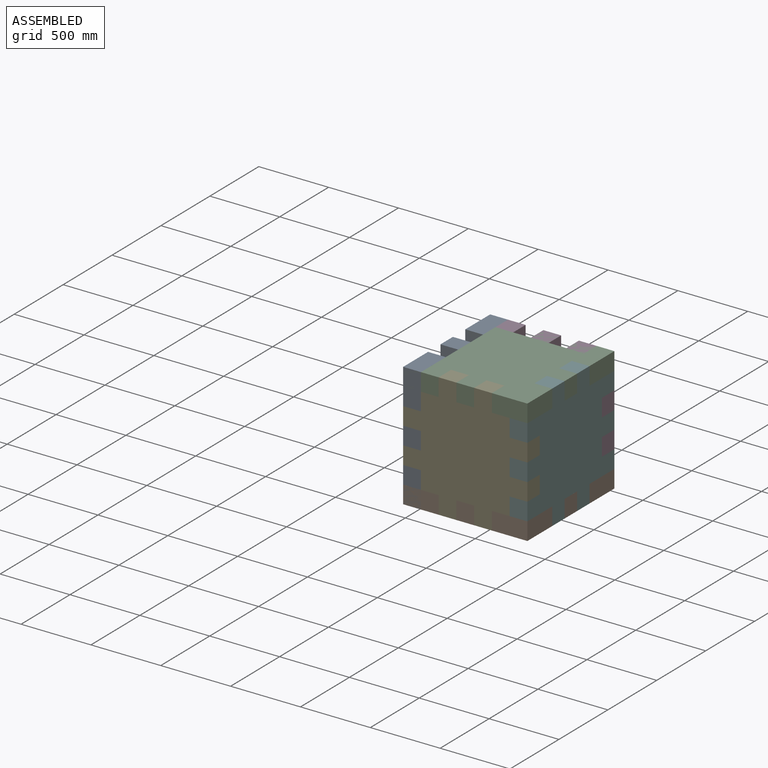
[diagram: assembled view]
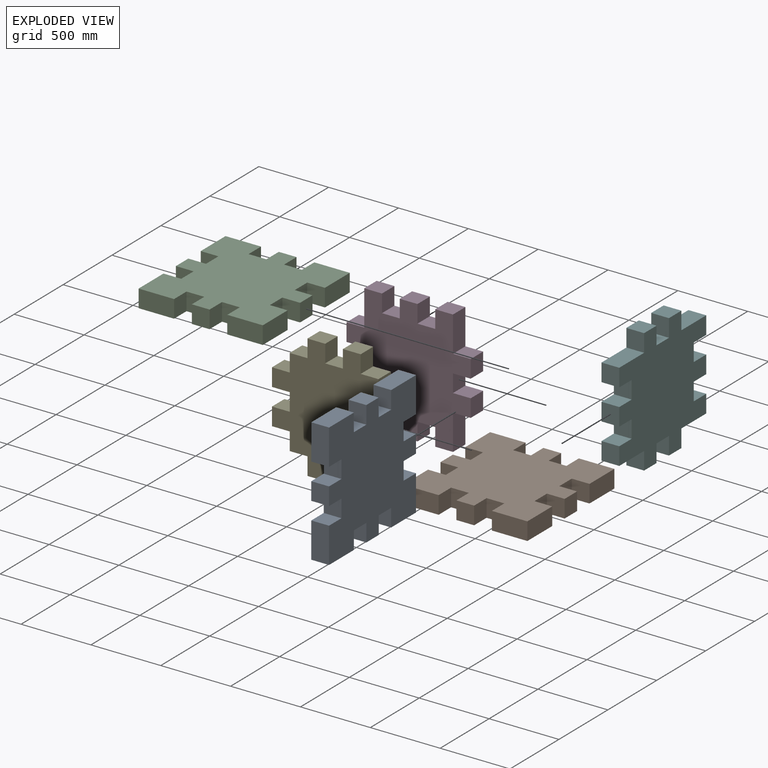
[diagram: exploded view]
GUIDED TOUR — MATED ASSEMBLY (Onshape document fb6f18fc9644f496db578211, AutoMate assembly fb6f18fc9644f496db578211_eea5504108c8b8bb8dff824f_bc9b73dee64ba3d77d8f322b_default)

This assembly has 6 components, labeled P0..P5 below (a component is one placed occurrence of a part; the same part can appear more than once), held together by 5 mates. A mate is a constraint between two components; its type names the relative motion it leaves free:
  FASTENED — locks the two components together rigidly (no relative motion).
Axis/direction vectors are unit vectors and 'through' points are millimeter coordinates, both in the assembly's world frame.

MATES
  1. FASTENED "Fastened 2": P3 <-> P1, direction (-1.000, 0.000, 0.000) through (-18.81, 369.42, -9.27) mm
  2. FASTENED "Fastened 3": P1 <-> P5, direction (0.000, -1.000, 0.000) through (171.69, -75.08, -9.27) mm
  3. FASTENED "Fastened 4": P1 <-> P4, direction (1.000, 0.000, 0.000) through (-272.81, -265.58, -9.27) mm
  4. FASTENED "Fastened 1": P0 <-> P1, direction (0.000, 1.000, 0.000) through (-463.31, 178.92, -9.27) mm
  5. FASTENED "Fastened 5": P2 <-> P4, direction (1.000, 0.000, 0.000) through (-272.81, -265.58, 879.73) mm

ASSEMBLY ORDER
  1. P1 — the base component [order heuristic]
  2. P0 [order heuristic]
  3. P3 [order heuristic]
  4. P4 [order heuristic]
  5. P5 [order heuristic]
  6. P2 [order heuristic]
Order-tag legend:
  [order heuristic] — this assembly is geometrically interlocked (no collision-free removal order exists), so components are listed in mate-graph order; insertion feasibility is not verified.

Of the 6 components, 6 carry the full construction recipe — the FeatureScript program that regenerates the part's solid from scratch; the rest are supplied as boundary geometry only.
Each toured component is shown spotlighted twice — in the assembled view, then in the exploded view, where a leader line traces a displaced component back to its assembled socket (saturated green if recipe-attached, orange if geometry-only; every other component desaturated gray) — followed by its recipe or geometry summary and the mates that hold it.
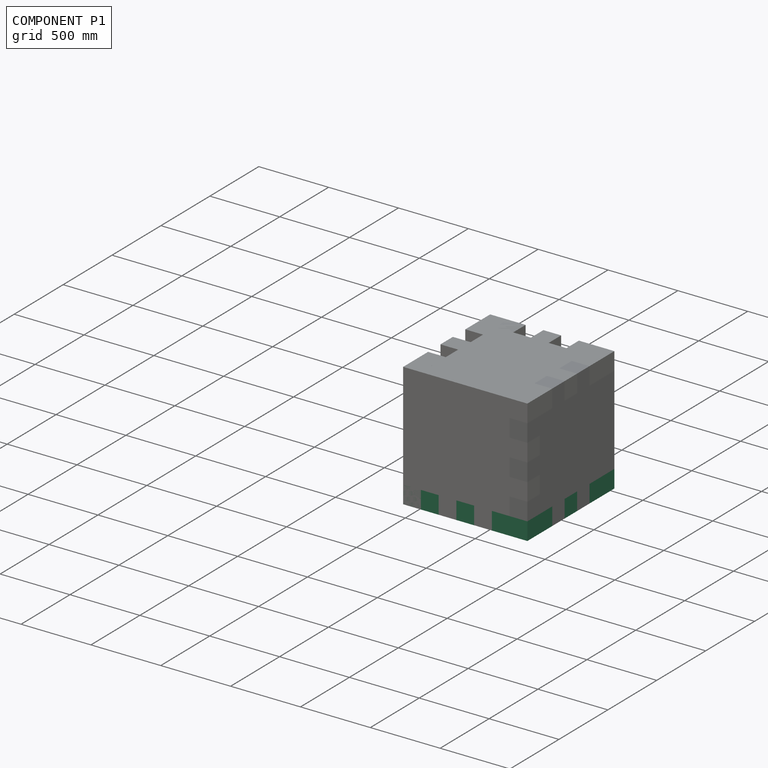
[diagram: component P1 — assembled]
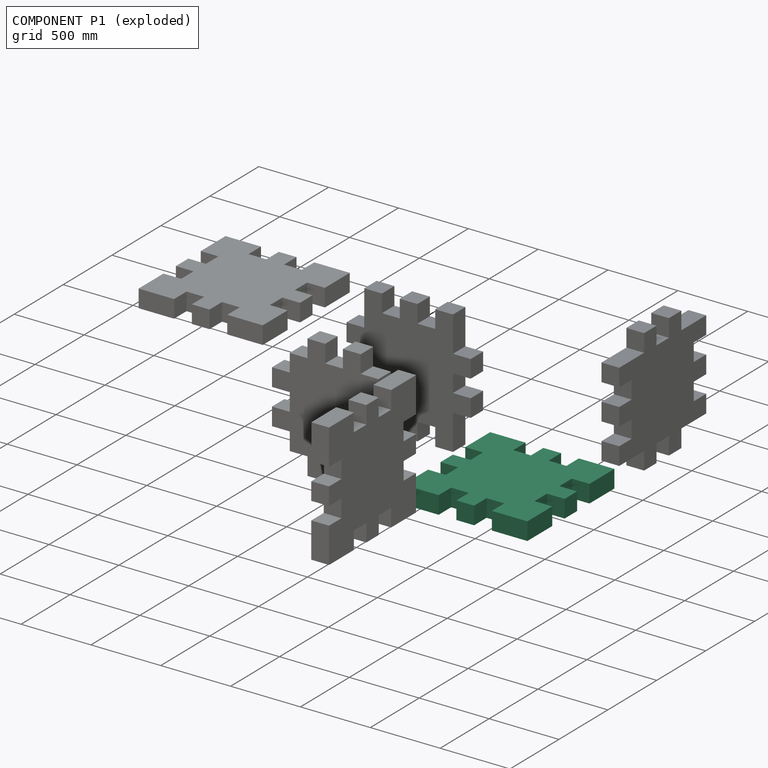
[diagram: component P1 — exploded]
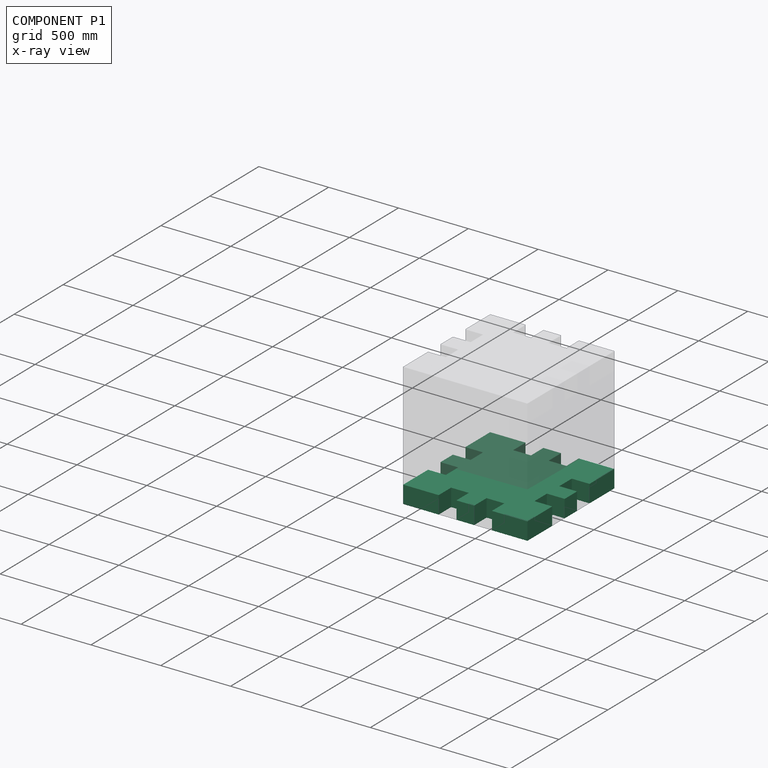
[diagram: component P1 — x-ray view]
COMPONENT P1 — same part as P0 (CADFS 00801034); its construction recipe is shown at P0.
Held by: FASTENED mate "Fastened 2" to P3; FASTENED mate "Fastened 3" to P5; FASTENED mate "Fastened 4" to P4; FASTENED mate "Fastened 1" to P0.
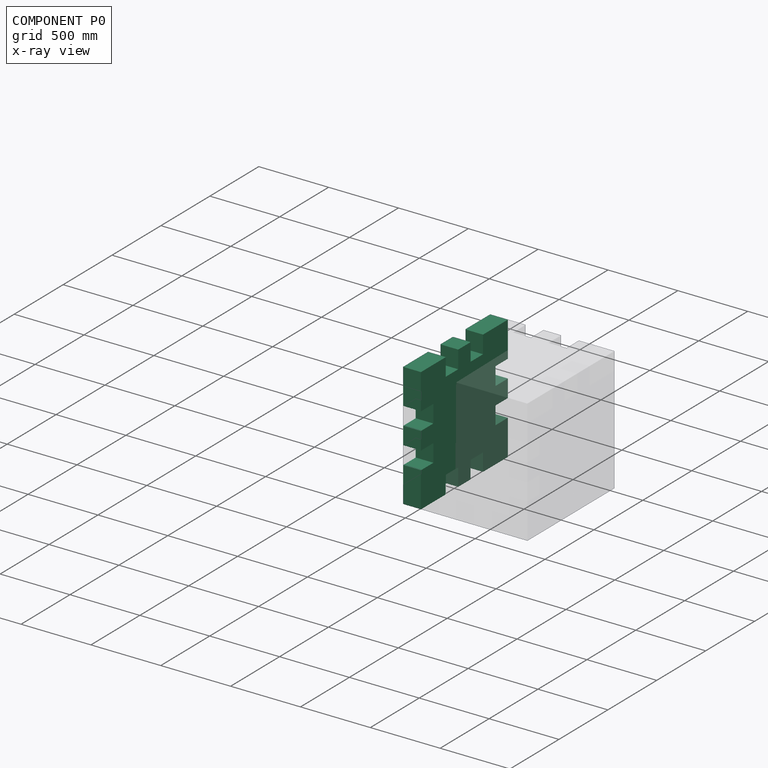
[diagram: component P0 — x-ray view]
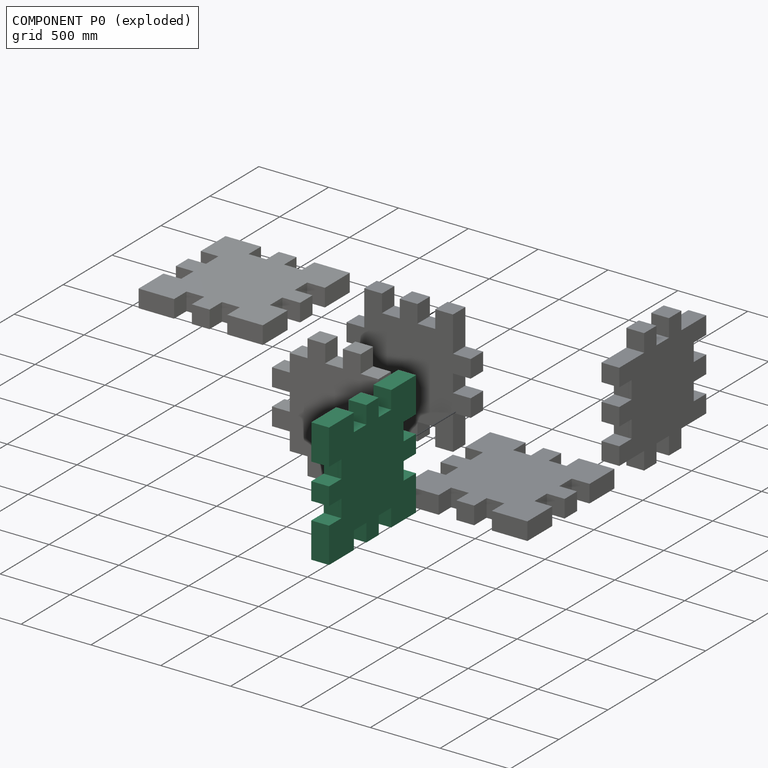
[diagram: component P0 — exploded]
COMPONENT P0 — recipe-attached (CADFS 00801034, mesh-verified: the recipe's output STEP matches this component's geometry to below the mesh-comparison resolution (tessellation chordal tolerance ~1.9 mm)).
Held by: FASTENED mate "Fastened 1" to P1.
Construction recipe (FeatureScript — the CAD program that rebuilds this solid; sketch coordinates are in the units given by the * unit suffixes, e.g. mm):

FeatureScript 1511;
import(path : "onshape/std/geometry.fs", version : "1511.0");
import(path : "onshape/std/common.fs", version : "1511.0");
const mm = millimeter;
const VERTEX = EntityType.VERTEX;
const EDGE = EntityType.EDGE;
const FACE = EntityType.FACE;
const BODY = EntityType.BODY;
function v(x, y){return vector(x, y);}
function OD(order){return orderDisambiguation(order);}
function OSD(set){return originalSetDisambiguation(set);}
function TD(topology){return topologyDisambiguation(topology);}
function TDD(query){return trueDependencyDisambiguation(query);}
function sQuery(a, b, c) {return sketchEntityQuery(a, b, c);}

annotation { "Feature Type Name" : "Feature", "Feature Type Description" : "" }
export const myFeature = defineFeature(function(context is Context, id is Id, definition is map)
    precondition{}
    {
        {
            var Q0;
            Q0=qCreatedBy(makeId("Top.planeOp"),FACE);
            var sketch = newSketch(context, id + "F0", { "sketchPlane" : qUnion([Q0])});
            skLineSegment(sketch, "E0.bottom", {"start": v(0, 0) * mm, "end": v(635, 0) * mm});
            skLineSegment(sketch, "E0.top", {"start": v(0, -635) * mm, "end": v(635, -635) * mm});
            skLineSegment(sketch, "E0.left", {"start": v(0, 0) * mm, "end": v(0, -635) * mm});
            skLineSegment(sketch, "E0.right", {"start": v(635, 0) * mm, "end": v(635, -635) * mm});
            skLineSegment(sketch, "E1.bottom", {"start": v(0, 0) * mm, "end": v(127, 0) * mm});
            skLineSegment(sketch, "E1.top", {"start": v(0, 127) * mm, "end": v(127, 127) * mm});
            skLineSegment(sketch, "E1.left", {"start": v(0, 0) * mm, "end": v(0, 127) * mm});
            skLineSegment(sketch, "E1.right", {"start": v(127, 0) * mm, "end": v(127, 127) * mm});
            skLineSegment(sketch, "E2.bottom", {"start": v(254, 0) * mm, "end": v(381, 0) * mm});
            skLineSegment(sketch, "E2.top", {"start": v(254, 127) * mm, "end": v(381, 127) * mm});
            skLineSegment(sketch, "E2.left", {"start": v(254, 0) * mm, "end": v(254, 127) * mm});
            skLineSegment(sketch, "E2.right", {"start": v(381, 0) * mm, "end": v(381, 127) * mm});
            skLineSegment(sketch, "E3.bottom", {"start": v(635, 0) * mm, "end": v(508, 0) * mm});
            skLineSegment(sketch, "E3.top", {"start": v(635, 127) * mm, "end": v(508, 127) * mm});
            skLineSegment(sketch, "E3.left", {"start": v(635, 0) * mm, "end": v(635, 127) * mm});
            skLineSegment(sketch, "E3.right", {"start": v(508, 0) * mm, "end": v(508, 127) * mm});
            skLineSegment(sketch, "E4.bottom", {"start": v(0, 0) * mm, "end": v(-127, 0) * mm});
            skLineSegment(sketch, "E4.top", {"start": v(0, -127) * mm, "end": v(-127, -127) * mm});
            skLineSegment(sketch, "E4.left", {"start": v(0, 0) * mm, "end": v(0, -127) * mm});
            skLineSegment(sketch, "E4.right", {"start": v(-127, 0) * mm, "end": v(-127, -127) * mm});
            skLineSegment(sketch, "E5.bottom", {"start": v(0, -254) * mm, "end": v(-127, -254) * mm});
            skLineSegment(sketch, "E5.top", {"start": v(0, -381) * mm, "end": v(-127, -381) * mm});
            skLineSegment(sketch, "E5.left", {"start": v(0, -254) * mm, "end": v(0, -381) * mm});
            skLineSegment(sketch, "E5.right", {"start": v(-127, -254) * mm, "end": v(-127, -381) * mm});
            skLineSegment(sketch, "E6.bottom", {"start": v(0, -635) * mm, "end": v(-127, -635) * mm});
            skLineSegment(sketch, "E6.top", {"start": v(0, -508) * mm, "end": v(-127, -508) * mm});
            skLineSegment(sketch, "E6.left", {"start": v(0, -635) * mm, "end": v(0, -508) * mm});
            skLineSegment(sketch, "E6.right", {"start": v(-127, -635) * mm, "end": v(-127, -508) * mm});
            skLineSegment(sketch, "E7.bottom", {"start": v(0, -635) * mm, "end": v(127, -635) * mm});
            skLineSegment(sketch, "E7.top", {"start": v(0, -762) * mm, "end": v(127, -762) * mm});
            skLineSegment(sketch, "E7.left", {"start": v(0, -635) * mm, "end": v(0, -762) * mm});
            skLineSegment(sketch, "E7.right", {"start": v(127, -635) * mm, "end": v(127, -762) * mm});
            skLineSegment(sketch, "E8.bottom", {"start": v(254, -635) * mm, "end": v(381, -635) * mm});
            skLineSegment(sketch, "E8.top", {"start": v(254, -762) * mm, "end": v(381, -762) * mm});
            skLineSegment(sketch, "E8.left", {"start": v(254, -635) * mm, "end": v(254, -762) * mm});
            skLineSegment(sketch, "E8.right", {"start": v(381, -635) * mm, "end": v(381, -762) * mm});
            skLineSegment(sketch, "E9.bottom", {"start": v(635, -635) * mm, "end": v(508, -635) * mm});
            skLineSegment(sketch, "E9.top", {"start": v(635, -762) * mm, "end": v(508, -762) * mm});
            skLineSegment(sketch, "E9.left", {"start": v(635, -635) * mm, "end": v(635, -762) * mm});
            skLineSegment(sketch, "E9.right", {"start": v(508, -635) * mm, "end": v(508, -762) * mm});
            skLineSegment(sketch, "E10.bottom", {"start": v(635, 0) * mm, "end": v(762, 0) * mm});
            skLineSegment(sketch, "E10.top", {"start": v(635, -127) * mm, "end": v(762, -127) * mm});
            skLineSegment(sketch, "E10.left", {"start": v(635, 0) * mm, "end": v(635, -127) * mm});
            skLineSegment(sketch, "E10.right", {"start": v(762, 0) * mm, "end": v(762, -127) * mm});
            skLineSegment(sketch, "E11.bottom", {"start": v(635, -508) * mm, "end": v(762, -508) * mm});
            skLineSegment(sketch, "E11.top", {"start": v(635, -635) * mm, "end": v(762, -635) * mm});
            skLineSegment(sketch, "E11.left", {"start": v(635, -508) * mm, "end": v(635, -635) * mm});
            skLineSegment(sketch, "E11.right", {"start": v(762, -508) * mm, "end": v(762, -635) * mm});
            skLineSegment(sketch, "E12.bottom", {"start": v(635, -254) * mm, "end": v(762, -254) * mm});
            skLineSegment(sketch, "E12.top", {"start": v(635, -381) * mm, "end": v(762, -381) * mm});
            skLineSegment(sketch, "E12.left", {"start": v(635, -254) * mm, "end": v(635, -381) * mm});
            skLineSegment(sketch, "E12.right", {"start": v(762, -254) * mm, "end": v(762, -381) * mm});
            skLineSegment(sketch, "E13.bottom", {"start": v(-127, 0) * mm, "end": v(0, 0) * mm});
            skLineSegment(sketch, "E13.top", {"start": v(-127, 127) * mm, "end": v(0, 127) * mm});
            skLineSegment(sketch, "E13.left", {"start": v(-127, 0) * mm, "end": v(-127, 127) * mm});
            skLineSegment(sketch, "E14.bottom", {"start": v(635, 127) * mm, "end": v(762, 127) * mm});
            skLineSegment(sketch, "E14.left", {"start": v(635, 127) * mm, "end": v(635, 0) * mm});
            skLineSegment(sketch, "E14.right", {"start": v(762, 127) * mm, "end": v(762, 0) * mm});
            skLineSegment(sketch, "E15.bottom", {"start": v(-127, -635) * mm, "end": v(0, -635) * mm});
            skLineSegment(sketch, "E15.top", {"start": v(-127, -762) * mm, "end": v(0, -762) * mm});
            skLineSegment(sketch, "E15.left", {"start": v(-127, -635) * mm, "end": v(-127, -762) * mm});
            skLineSegment(sketch, "E16.bottom", {"start": v(762, -635) * mm, "end": v(635, -635) * mm});
            skLineSegment(sketch, "E16.top", {"start": v(762, -762) * mm, "end": v(635, -762) * mm});
            skLineSegment(sketch, "E16.left", {"start": v(762, -635) * mm, "end": v(762, -762) * mm});
            skSolve(sketch);
        }
        {
            var Q0;
            Q0 = qSketchRegion(id + "F0", true);
            extrude(context, id + "F1", {"entities" : qUnion([Q0]), "depth" : 127 * mm, "offsetDistance" : 25.4 * mm});
        }
    });
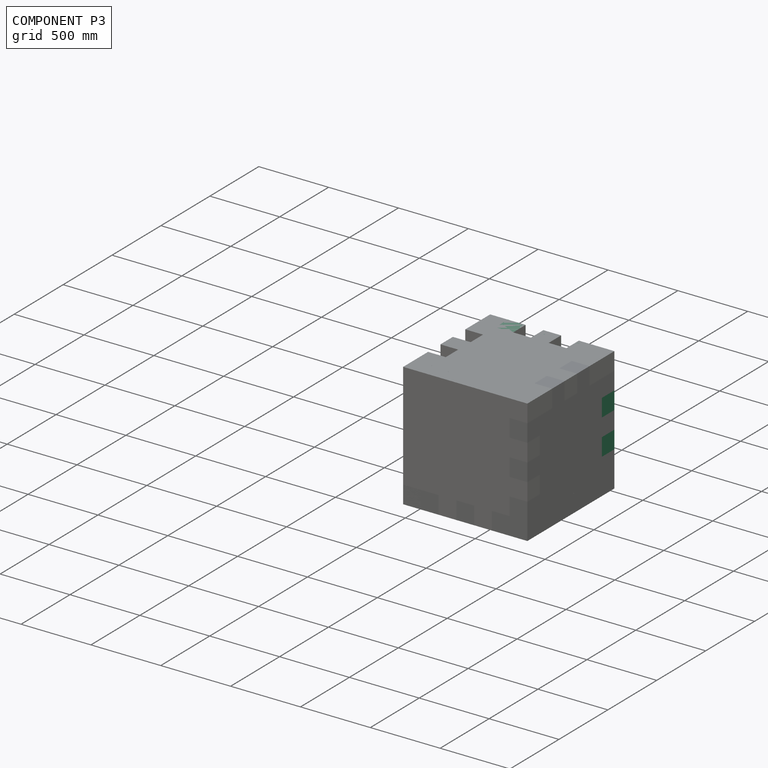
[diagram: component P3 — assembled]
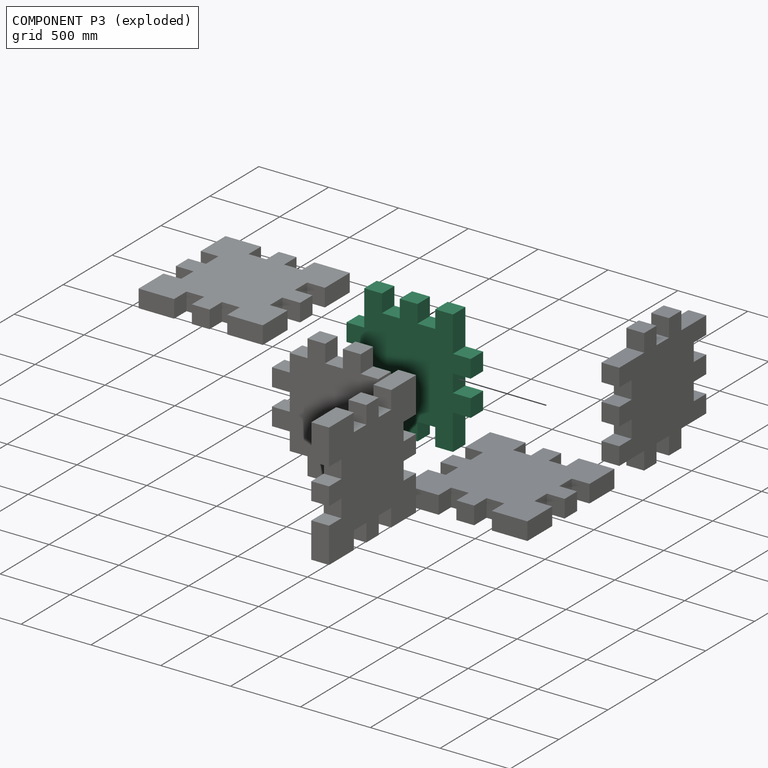
[diagram: component P3 — exploded]
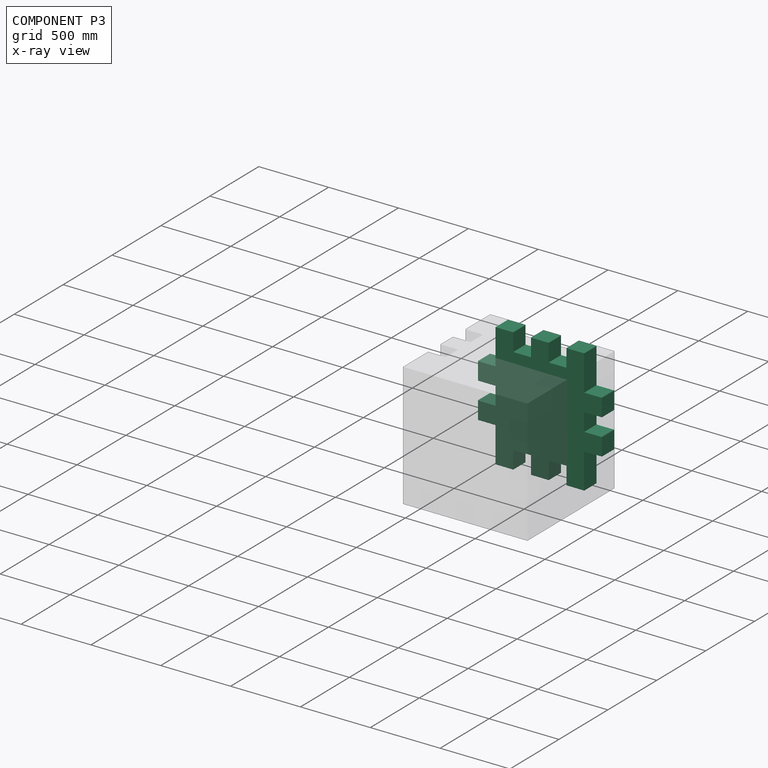
[diagram: component P3 — x-ray view]
COMPONENT P3 — recipe-attached (CADFS 00801035, mesh-verified: the recipe's output STEP matches this component's geometry to below the mesh-comparison resolution (tessellation chordal tolerance ~1.9 mm)).
Held by: FASTENED mate "Fastened 2" to P1.
Construction recipe (FeatureScript — the CAD program that rebuilds this solid; sketch coordinates are in the units given by the * unit suffixes, e.g. mm):

FeatureScript 1511;
import(path : "onshape/std/geometry.fs", version : "1511.0");
import(path : "onshape/std/common.fs", version : "1511.0");
const mm = millimeter;
const VERTEX = EntityType.VERTEX;
const EDGE = EntityType.EDGE;
const FACE = EntityType.FACE;
const BODY = EntityType.BODY;
function v(x, y){return vector(x, y);}
function OD(order){return orderDisambiguation(order);}
function OSD(set){return originalSetDisambiguation(set);}
function TD(topology){return topologyDisambiguation(topology);}
function TDD(query){return trueDependencyDisambiguation(query);}
function sQuery(a, b, c) {return sketchEntityQuery(a, b, c);}

annotation { "Feature Type Name" : "Feature", "Feature Type Description" : "" }
export const myFeature = defineFeature(function(context is Context, id is Id, definition is map)
    precondition{}
    {
        {
            var Q0;
            Q0=qCreatedBy(makeId("Top.planeOp"),FACE);
            var sketch = newSketch(context, id + "F0", { "sketchPlane" : qUnion([Q0])});
            skLineSegment(sketch, "E0.bottom", {"start": v(0, 0) * mm, "end": v(635, 0) * mm});
            skLineSegment(sketch, "E0.top", {"start": v(0, -635) * mm, "end": v(635, -635) * mm});
            skLineSegment(sketch, "E0.left", {"start": v(0, 0) * mm, "end": v(0, -635) * mm});
            skLineSegment(sketch, "E0.right", {"start": v(635, 0) * mm, "end": v(635, -635) * mm});
            skLineSegment(sketch, "E1.bottom", {"start": v(0, 0) * mm, "end": v(127, 0) * mm});
            skLineSegment(sketch, "E1.top", {"start": v(0, 127) * mm, "end": v(127, 127) * mm});
            skLineSegment(sketch, "E1.left", {"start": v(0, 0) * mm, "end": v(0, 127) * mm});
            skLineSegment(sketch, "E1.right", {"start": v(127, 0) * mm, "end": v(127, 127) * mm});
            skLineSegment(sketch, "E2.bottom", {"start": v(254, 0) * mm, "end": v(381, 0) * mm});
            skLineSegment(sketch, "E2.top", {"start": v(254, 127) * mm, "end": v(381, 127) * mm});
            skLineSegment(sketch, "E2.left", {"start": v(254, 0) * mm, "end": v(254, 127) * mm});
            skLineSegment(sketch, "E2.right", {"start": v(381, 0) * mm, "end": v(381, 127) * mm});
            skLineSegment(sketch, "E3.bottom", {"start": v(635, 0) * mm, "end": v(508, 0) * mm});
            skLineSegment(sketch, "E3.top", {"start": v(635, 127) * mm, "end": v(508, 127) * mm});
            skLineSegment(sketch, "E3.left", {"start": v(635, 0) * mm, "end": v(635, 127) * mm});
            skLineSegment(sketch, "E3.right", {"start": v(508, 0) * mm, "end": v(508, 127) * mm});
            skLineSegment(sketch, "E4.bottom", {"start": v(0, -635) * mm, "end": v(127, -635) * mm});
            skLineSegment(sketch, "E4.top", {"start": v(0, -762) * mm, "end": v(127, -762) * mm});
            skLineSegment(sketch, "E4.left", {"start": v(0, -635) * mm, "end": v(0, -762) * mm});
            skLineSegment(sketch, "E4.right", {"start": v(127, -635) * mm, "end": v(127, -762) * mm});
            skLineSegment(sketch, "E5.bottom", {"start": v(254, -635) * mm, "end": v(381, -635) * mm});
            skLineSegment(sketch, "E5.top", {"start": v(254, -762) * mm, "end": v(381, -762) * mm});
            skLineSegment(sketch, "E5.left", {"start": v(254, -635) * mm, "end": v(254, -762) * mm});
            skLineSegment(sketch, "E5.right", {"start": v(381, -635) * mm, "end": v(381, -762) * mm});
            skLineSegment(sketch, "E6.bottom", {"start": v(635, -635) * mm, "end": v(508, -635) * mm});
            skLineSegment(sketch, "E6.top", {"start": v(635, -762) * mm, "end": v(508, -762) * mm});
            skLineSegment(sketch, "E6.left", {"start": v(635, -635) * mm, "end": v(635, -762) * mm});
            skLineSegment(sketch, "E6.right", {"start": v(508, -635) * mm, "end": v(508, -762) * mm});
            skLineSegment(sketch, "E7.bottom", {"start": v(0, -127) * mm, "end": v(-127, -127) * mm});
            skLineSegment(sketch, "E7.top", {"start": v(0, -254) * mm, "end": v(-127, -254) * mm});
            skLineSegment(sketch, "E7.left", {"start": v(0, -127) * mm, "end": v(0, -254) * mm});
            skLineSegment(sketch, "E7.right", {"start": v(-127, -127) * mm, "end": v(-127, -254) * mm});
            skLineSegment(sketch, "E8.bottom", {"start": v(0, -381) * mm, "end": v(-127, -381) * mm});
            skLineSegment(sketch, "E8.top", {"start": v(0, -508) * mm, "end": v(-127, -508) * mm});
            skLineSegment(sketch, "E8.left", {"start": v(0, -381) * mm, "end": v(0, -508) * mm});
            skLineSegment(sketch, "E8.right", {"start": v(-127, -381) * mm, "end": v(-127, -508) * mm});
            skLineSegment(sketch, "E9.bottom", {"start": v(635, -127) * mm, "end": v(762, -127) * mm});
            skLineSegment(sketch, "E9.top", {"start": v(635, -254) * mm, "end": v(762, -254) * mm});
            skLineSegment(sketch, "E9.left", {"start": v(635, -127) * mm, "end": v(635, -254) * mm});
            skLineSegment(sketch, "E9.right", {"start": v(762, -127) * mm, "end": v(762, -254) * mm});
            skLineSegment(sketch, "E10.bottom", {"start": v(635, -381) * mm, "end": v(762, -381) * mm});
            skLineSegment(sketch, "E10.top", {"start": v(635, -508) * mm, "end": v(762, -508) * mm});
            skLineSegment(sketch, "E10.left", {"start": v(635, -381) * mm, "end": v(635, -508) * mm});
            skLineSegment(sketch, "E10.right", {"start": v(762, -381) * mm, "end": v(762, -508) * mm});
            skSolve(sketch);
        }
        {
            var Q0;
            Q0 = qSketchRegion(id + "F0", true);
            extrude(context, id + "F1", {"entities" : qUnion([Q0]), "depth" : 127 * mm, "offsetDistance" : 25.4 * mm});
        }
    });
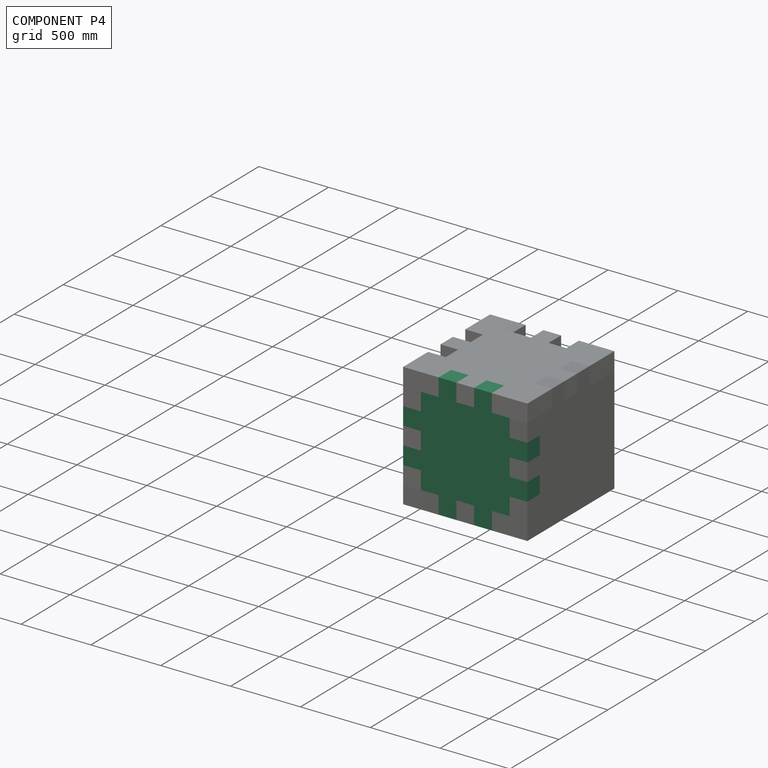
[diagram: component P4 — assembled]
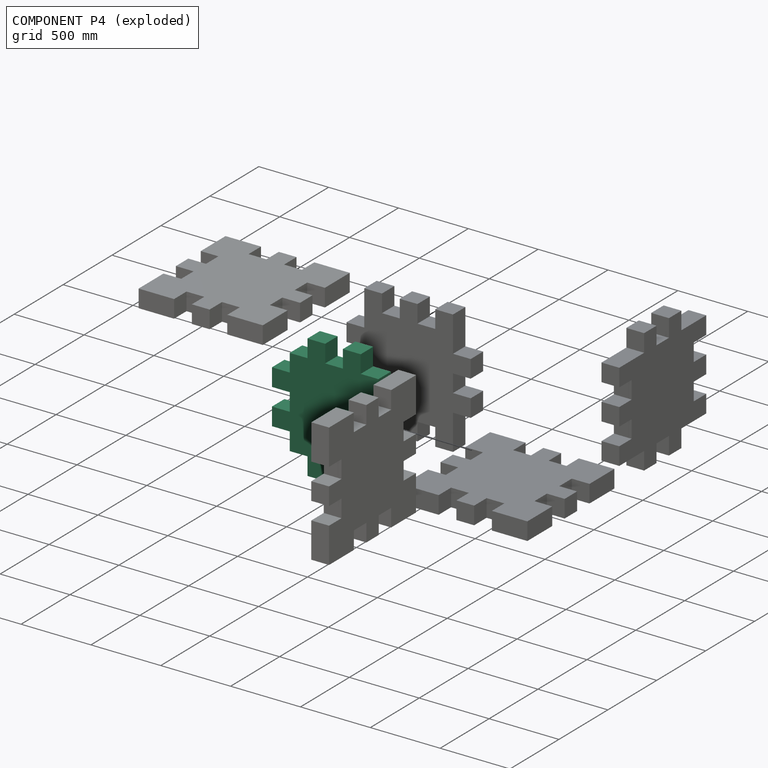
[diagram: component P4 — exploded]
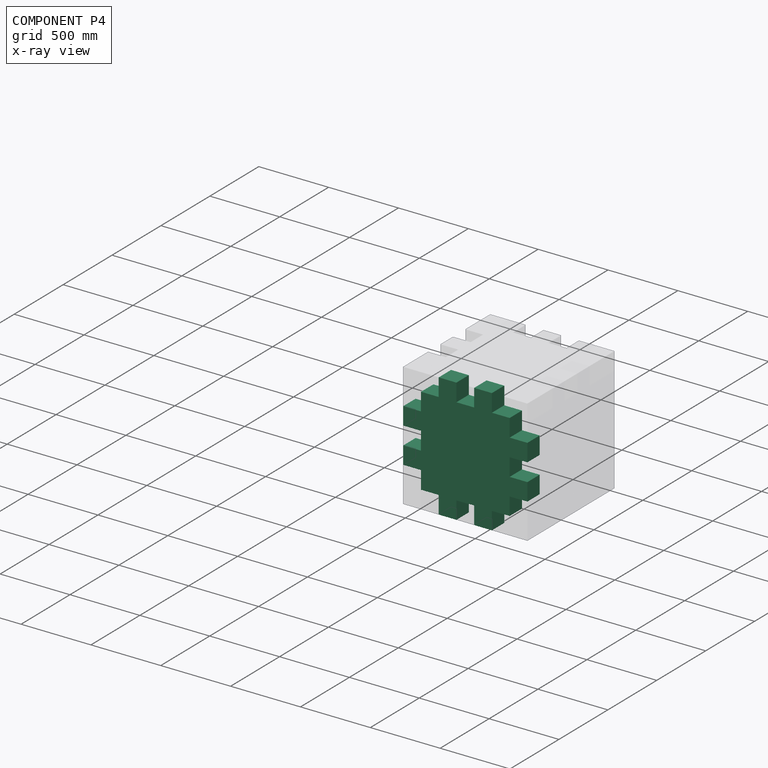
[diagram: component P4 — x-ray view]
COMPONENT P4 — recipe-attached (CADFS 00801033, mesh-verified: the recipe's output STEP matches this component's geometry to below the mesh-comparison resolution (tessellation chordal tolerance ~1.9 mm)).
Held by: FASTENED mate "Fastened 4" to P1; FASTENED mate "Fastened 5" to P2.
Construction recipe (FeatureScript — the CAD program that rebuilds this solid; sketch coordinates are in the units given by the * unit suffixes, e.g. mm):

FeatureScript 1511;
import(path : "onshape/std/geometry.fs", version : "1511.0");
import(path : "onshape/std/common.fs", version : "1511.0");
const mm = millimeter;
const VERTEX = EntityType.VERTEX;
const EDGE = EntityType.EDGE;
const FACE = EntityType.FACE;
const BODY = EntityType.BODY;
function v(x, y){return vector(x, y);}
function OD(order){return orderDisambiguation(order);}
function OSD(set){return originalSetDisambiguation(set);}
function TD(topology){return topologyDisambiguation(topology);}
function TDD(query){return trueDependencyDisambiguation(query);}
function sQuery(a, b, c) {return sketchEntityQuery(a, b, c);}

annotation { "Feature Type Name" : "Feature", "Feature Type Description" : "" }
export const myFeature = defineFeature(function(context is Context, id is Id, definition is map)
    precondition{}
    {
        {
            var Q0;
            Q0=qCreatedBy(makeId("Top.planeOp"),FACE);
            var sketch = newSketch(context, id + "F0", { "sketchPlane" : qUnion([Q0])});
            skLineSegment(sketch, "E0.bottom", {"start": v(0, 0) * mm, "end": v(-635, 0) * mm});
            skLineSegment(sketch, "E0.top", {"start": v(0, 635) * mm, "end": v(-635, 635) * mm});
            skLineSegment(sketch, "E0.left", {"start": v(0, 0) * mm, "end": v(0, 635) * mm});
            skLineSegment(sketch, "E0.right", {"start": v(-635, 0) * mm, "end": v(-635, 635) * mm});
            skLineSegment(sketch, "E1.bottom", {"start": v(-635, 127) * mm, "end": v(-762, 127) * mm});
            skLineSegment(sketch, "E1.top", {"start": v(-635, 254) * mm, "end": v(-762, 254) * mm});
            skLineSegment(sketch, "E1.left", {"start": v(-635, 127) * mm, "end": v(-635, 254) * mm});
            skLineSegment(sketch, "E1.right", {"start": v(-762, 127) * mm, "end": v(-762, 254) * mm});
            skLineSegment(sketch, "E2.bottom", {"start": v(-635, 381) * mm, "end": v(-762, 381) * mm});
            skLineSegment(sketch, "E2.top", {"start": v(-635, 508) * mm, "end": v(-762, 508) * mm});
            skLineSegment(sketch, "E2.left", {"start": v(-635, 381) * mm, "end": v(-635, 508) * mm});
            skLineSegment(sketch, "E2.right", {"start": v(-762, 381) * mm, "end": v(-762, 508) * mm});
            skLineSegment(sketch, "E3.bottom", {"start": v(-508, 635) * mm, "end": v(-381, 635) * mm});
            skLineSegment(sketch, "E3.top", {"start": v(-508, 762) * mm, "end": v(-381, 762) * mm});
            skLineSegment(sketch, "E3.left", {"start": v(-508, 635) * mm, "end": v(-508, 762) * mm});
            skLineSegment(sketch, "E3.right", {"start": v(-381, 635) * mm, "end": v(-381, 762) * mm});
            skLineSegment(sketch, "E4.bottom", {"start": v(-254, 635) * mm, "end": v(-127, 635) * mm});
            skLineSegment(sketch, "E4.top", {"start": v(-254, 762) * mm, "end": v(-127, 762) * mm});
            skLineSegment(sketch, "E4.left", {"start": v(-254, 635) * mm, "end": v(-254, 762) * mm});
            skLineSegment(sketch, "E4.right", {"start": v(-127, 635) * mm, "end": v(-127, 762) * mm});
            skLineSegment(sketch, "E5.bottom", {"start": v(0, 508) * mm, "end": v(127, 508) * mm});
            skLineSegment(sketch, "E5.top", {"start": v(0, 381) * mm, "end": v(127, 381) * mm});
            skLineSegment(sketch, "E5.left", {"start": v(0, 508) * mm, "end": v(0, 381) * mm});
            skLineSegment(sketch, "E5.right", {"start": v(127, 508) * mm, "end": v(127, 381) * mm});
            skLineSegment(sketch, "E6.bottom", {"start": v(0, 127) * mm, "end": v(127, 127) * mm});
            skLineSegment(sketch, "E6.top", {"start": v(0, 254) * mm, "end": v(127, 254) * mm});
            skLineSegment(sketch, "E6.left", {"start": v(0, 127) * mm, "end": v(0, 254) * mm});
            skLineSegment(sketch, "E6.right", {"start": v(127, 127) * mm, "end": v(127, 254) * mm});
            skLineSegment(sketch, "E7.bottom", {"start": v(-127, 0) * mm, "end": v(-254, 0) * mm});
            skLineSegment(sketch, "E7.top", {"start": v(-127, -127) * mm, "end": v(-254, -127) * mm});
            skLineSegment(sketch, "E7.left", {"start": v(-127, 0) * mm, "end": v(-127, -127) * mm});
            skLineSegment(sketch, "E7.right", {"start": v(-254, 0) * mm, "end": v(-254, -127) * mm});
            skLineSegment(sketch, "E8.bottom", {"start": v(-381, 0) * mm, "end": v(-508, 0) * mm});
            skLineSegment(sketch, "E8.top", {"start": v(-381, -127) * mm, "end": v(-508, -127) * mm});
            skLineSegment(sketch, "E8.left", {"start": v(-381, 0) * mm, "end": v(-381, -127) * mm});
            skLineSegment(sketch, "E8.right", {"start": v(-508, 0) * mm, "end": v(-508, -127) * mm});
            skSolve(sketch);
        }
        {
            var Q0;
            Q0 = qSketchRegion(id + "F0", true);
            extrude(context, id + "F1", {"entities" : qUnion([Q0]), "depth" : 127 * mm, "offsetDistance" : 25.4 * mm});
        }
    });
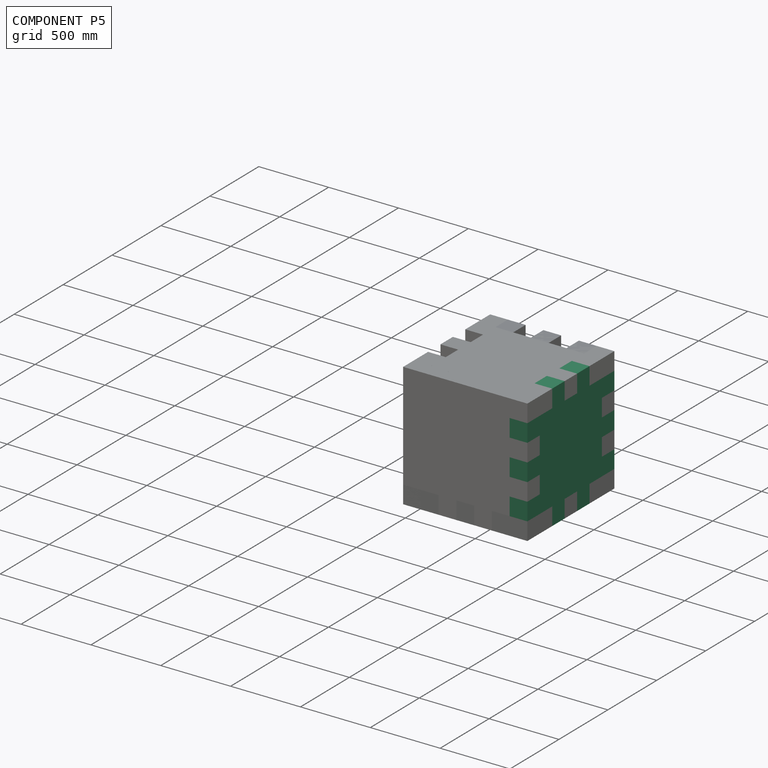
[diagram: component P5 — assembled]
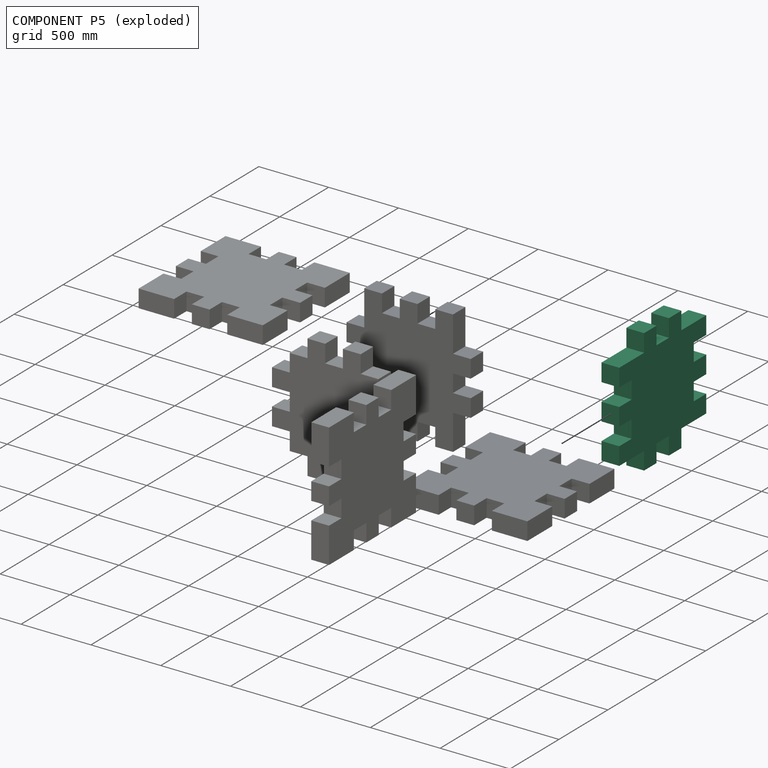
[diagram: component P5 — exploded]
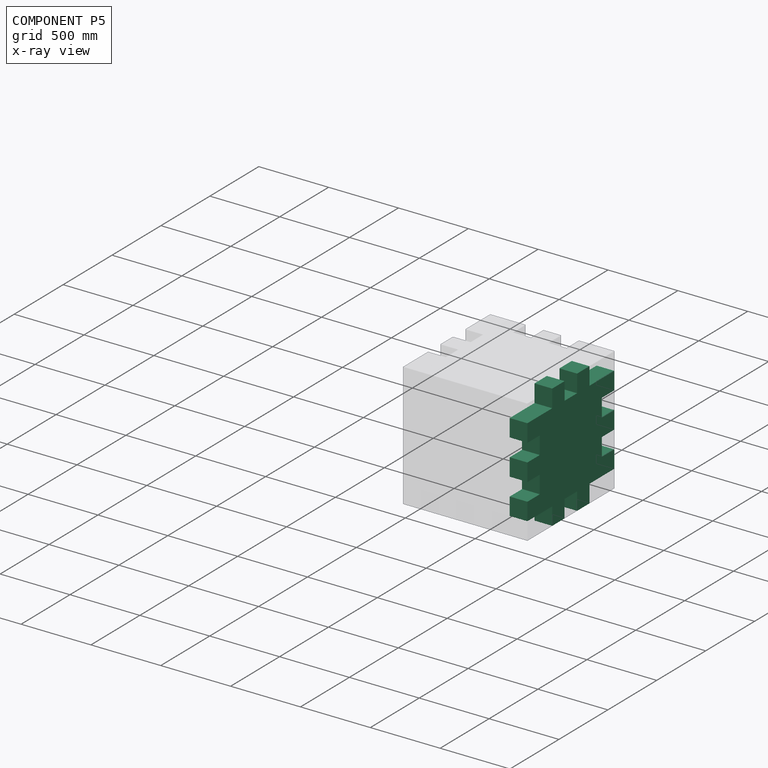
[diagram: component P5 — x-ray view]
COMPONENT P5 — same part as P3 (CADFS 00801035); its construction recipe is shown at P3.
Held by: FASTENED mate "Fastened 3" to P1.
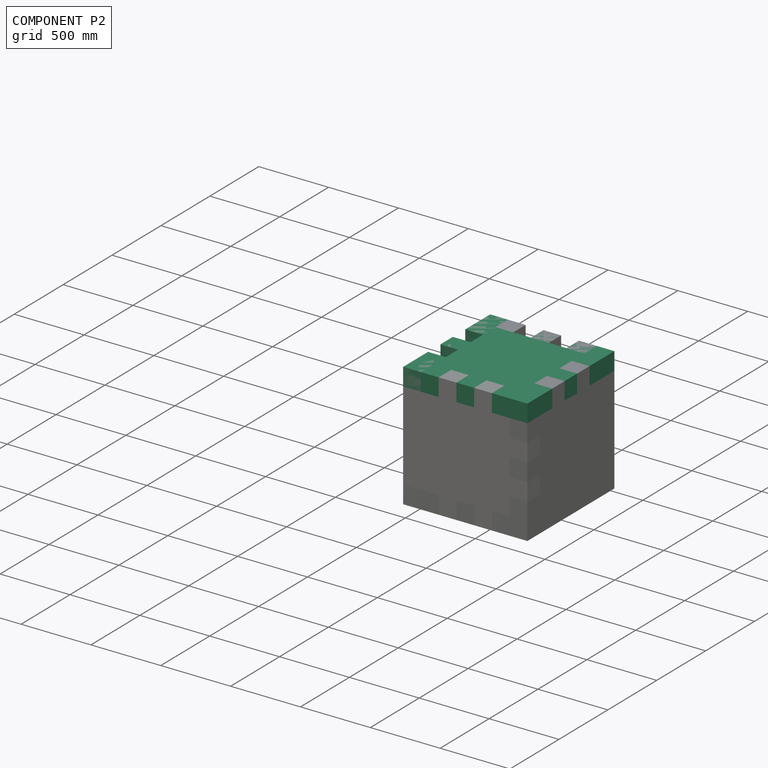
[diagram: component P2 — assembled]
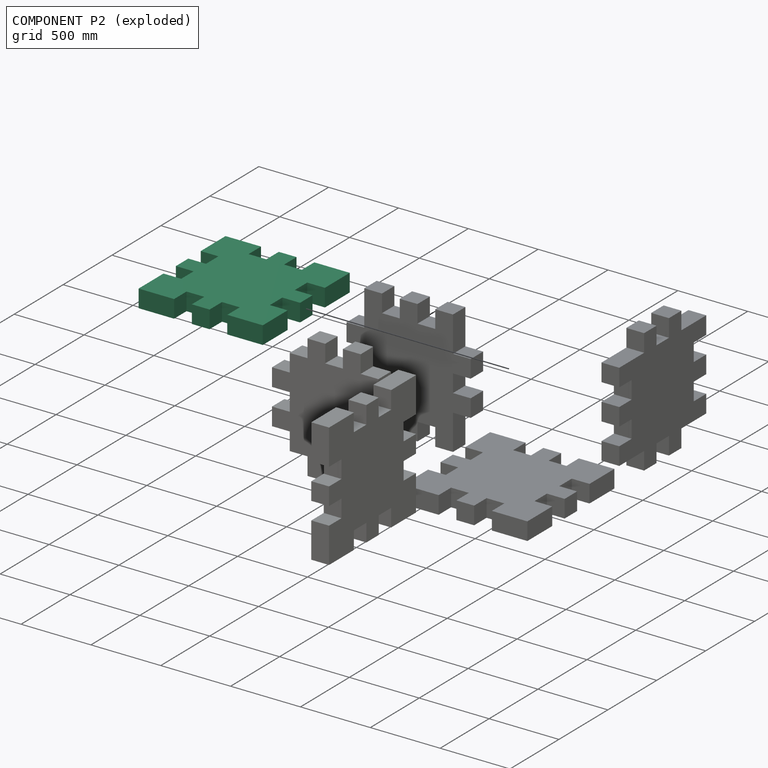
[diagram: component P2 — exploded]
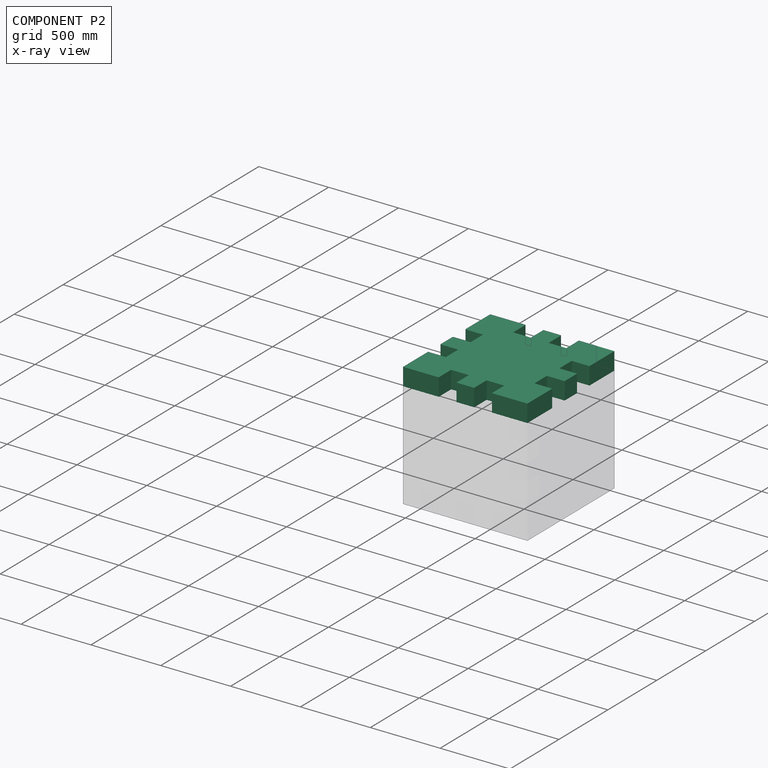
[diagram: component P2 — x-ray view]
COMPONENT P2 — same part as P0 (CADFS 00801034); its construction recipe is shown at P0.
Held by: FASTENED mate "Fastened 5" to P4.
PROVENANCE & LICENSES
Assembly (occurrences, transforms, mates, per-part STEP geometry): AutoMate dataset, Zenodo record 7776208, CC0.
Construction recipes: CADFS (HuggingFace VladPyatov/CADFS, CC-BY-4.0, layered over the ABC dataset), FeatureScript reconstruction programs keyed by ABC model id.
Join: ABC meta listings map ABC model id -> Onshape documentId; within a shared document, parts are matched by geometric signature (bounding-box dims + volume at 0.1% relative tolerance, exact B-rep face/solid counts).
Verification: 6 of this assembly's 6 components carry a recipe attachment, and every attachment is mesh-verified: the CADFS STEP and the AutoMate member STEP were compared as meshes in their shared local frame (symmetric sampled-point-to-mesh distance); worst across the 6 attachments: below the mesh-comparison resolution (tessellation chordal tolerance ~1.9 mm) on a 1264 mm part.
Renders: orthographic iso camera (az 35 / el 25); the floor grid conveys scale (grid pitch printed in each image; no ruler). In the exploded view each component is displaced by its stored offset vector: the offsets alone carry the explosion direction (mate normal/axis signs are not orientation cues and do not encode it), and separation distances are assigned per mate-chain, not proportionally to assembly-order depth.
